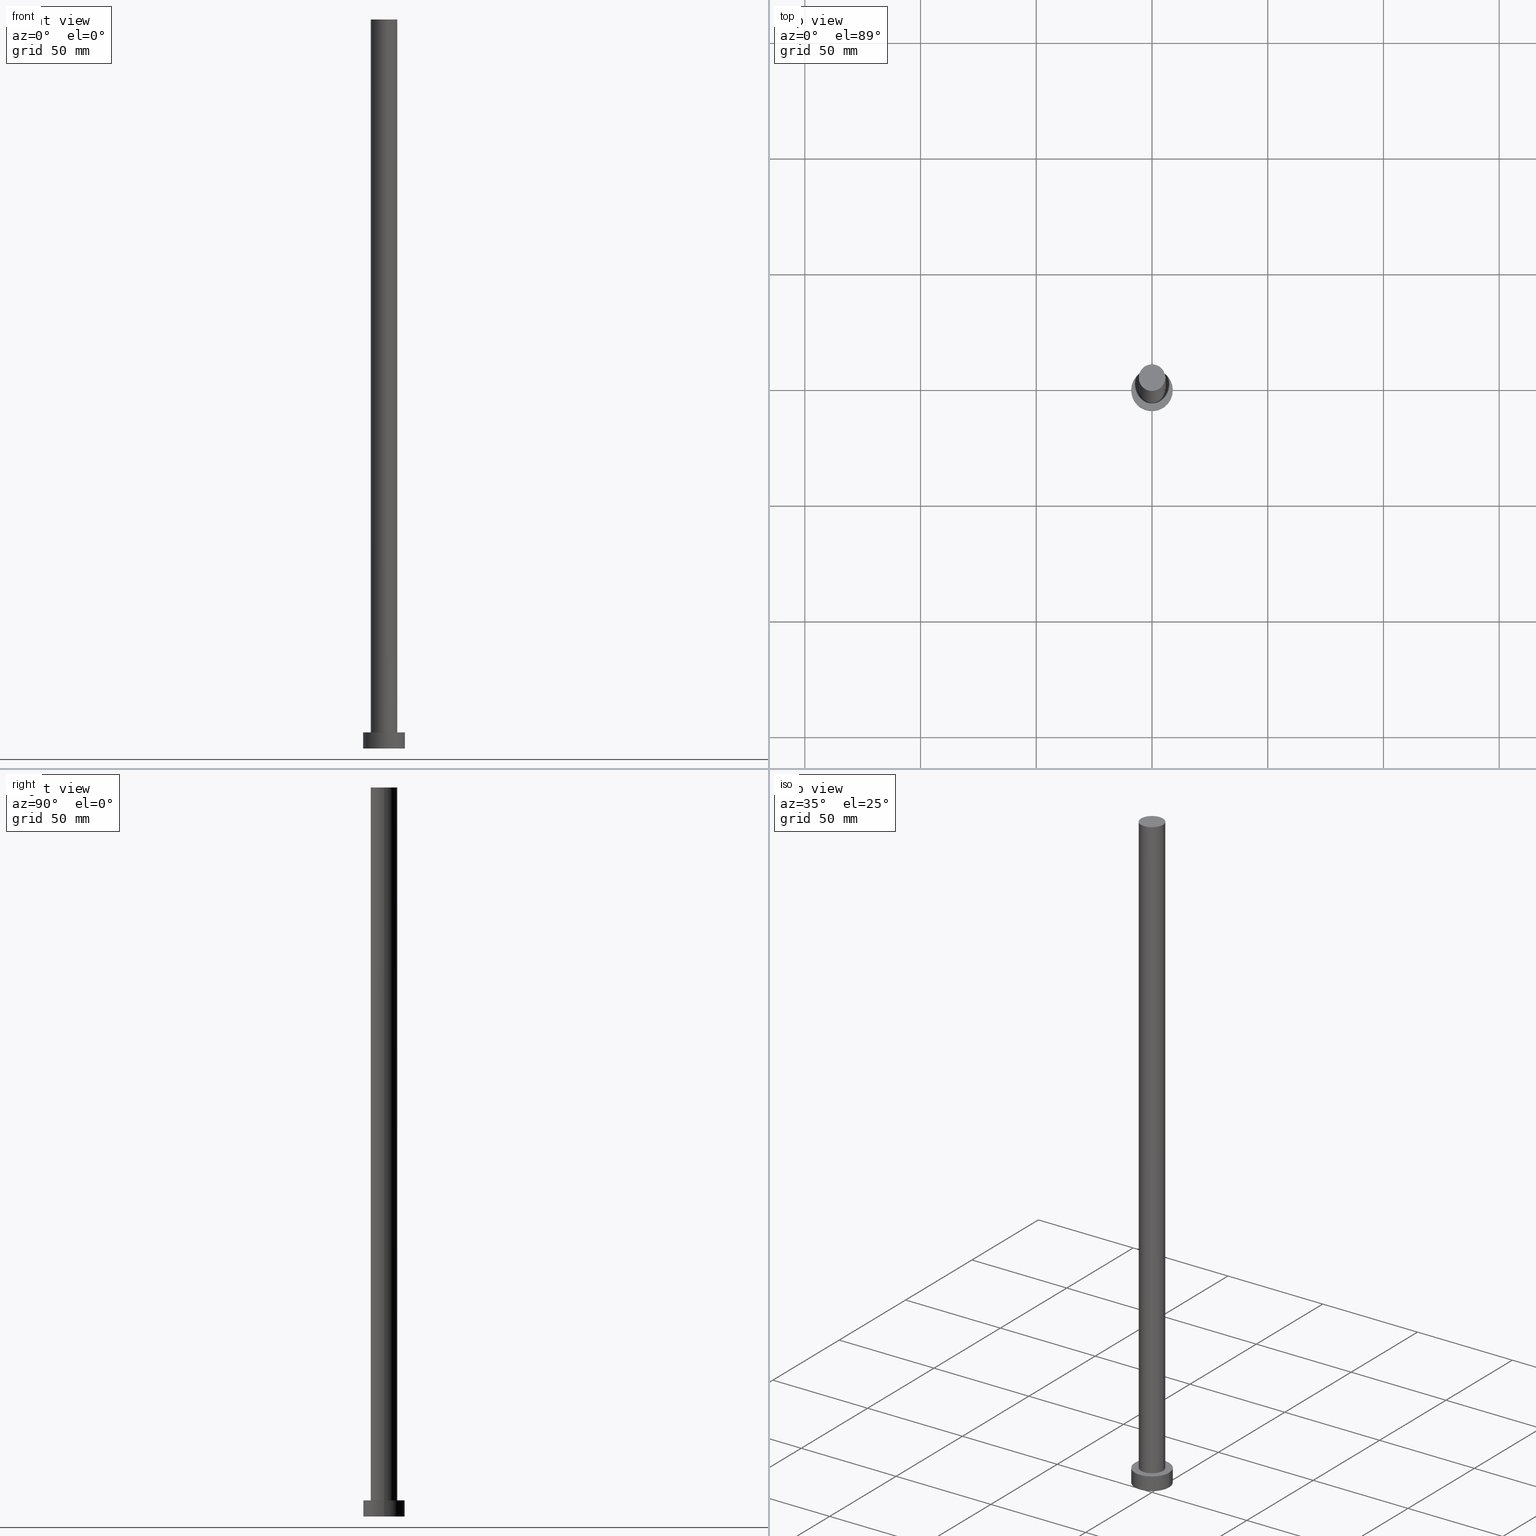
[diagram: canonical four-view strip — front | top / right | iso, engineering-drawing reading convention]
A machine part, canonical four-view strip (front | top / right | iso — engineering-drawing reading convention). The complete STEP part file that produces these views, byte-faithful:
ISO-10303-21;
HEADER;
FILE_DESCRIPTION (( 'STEP AP203' ),
    '1' );
FILE_NAME ('22f1.STEP',
    '2023-02-13T12:26:51',
    ( '' ),
    ( '' ),
    'SwSTEP 2.0',
    'SolidWorks 2019',
    '' );
FILE_SCHEMA (( 'CONFIG_CONTROL_DESIGN' ));
ENDSEC;

DATA;
#1 = ORIENTED_EDGE ( 'NONE', *, *, #95, .F. ) ;
#2 = AXIS2_PLACEMENT_3D ( 'NONE', #84, #99, #123 ) ;
#3 = FACE_OUTER_BOUND ( 'NONE', #69, .T. ) ;
#4 = ORIENTED_EDGE ( 'NONE', *, *, #157, .F. ) ;
#5 = CARTESIAN_POINT ( 'NONE',  ( 0.000000000000000000, 0.000000000000000000, 315.0000000000000000 ) ) ;
#6 = DIRECTION ( 'NONE',  ( -1.000000000000000000, 0.000000000000000000, 0.000000000000000000 ) ) ;
#7 = ORIENTED_EDGE ( 'NONE', *, *, #48, .F. ) ;
#8 = EDGE_CURVE ( 'NONE', #144, #79, #222, .T. ) ;
#9 = SECURITY_CLASSIFICATION ( '', '', #215 ) ;
#10 = ORIENTED_EDGE ( 'NONE', *, *, #224, .F. ) ;
#11 = EDGE_CURVE ( 'NONE', #85, #98, #223, .T. ) ;
#12 = ORIENTED_EDGE ( 'NONE', *, *, #103, .F. ) ;
#13 = PRODUCT ( '22f1', '22f1', '', ( #255 ) ) ;
#14 = CC_DESIGN_PERSON_AND_ORGANIZATION_ASSIGNMENT ( #90, #179, ( #76 ) ) ;
#15 = CYLINDRICAL_SURFACE ( 'NONE', #198, 5.750000000000000000 ) ;
#16 = PERSON_AND_ORGANIZATION ( #167, #55 ) ;
#17 = CARTESIAN_POINT ( 'NONE',  ( 0.000000000000000000, 0.000000000000000000, 7.000000000000000000 ) ) ;
#18 = FACE_BOUND ( 'NONE', #225, .T. ) ;
#19 = ORIENTED_EDGE ( 'NONE', *, *, #8, .F. ) ;
#20 = DIRECTION ( 'NONE',  ( -1.000000000000000000, 0.000000000000000000, 0.000000000000000000 ) ) ;
#21 = LOCAL_TIME ( 13, 26, 51.00000000000000000, #65 ) ;
#22 = DIRECTION ( 'NONE',  ( 0.000000000000000000, 0.000000000000000000, 1.000000000000000000 ) ) ;
#23 = CARTESIAN_POINT ( 'NONE',  ( 0.000000000000000000, 0.000000000000000000, 0.000000000000000000 ) ) ;
#24 = CC_DESIGN_PERSON_AND_ORGANIZATION_ASSIGNMENT ( #227, #211, ( #186 ) ) ;
#25 = CIRCLE ( 'NONE', #51, 5.750000000000000000 ) ;
#26 = PERSON_AND_ORGANIZATION ( #167, #55 ) ;
#27 = DIRECTION ( 'NONE',  ( 0.000000000000000000, 0.000000000000000000, 1.000000000000000000 ) ) ;
#28 = DATE_AND_TIME ( #251, #216 ) ;
#29 = AXIS2_PLACEMENT_3D ( 'NONE', #81, #185, #161 ) ;
#30 = APPLICATION_CONTEXT ( 'configuration controlled 3d designs of mechanical parts and assemblies' ) ;
#31 = DIRECTION ( 'NONE',  ( -0.000000000000000000, -0.000000000000000000, -1.000000000000000000 ) ) ;
#32 = CALENDAR_DATE ( 2023, 13, 2 ) ;
#33 = VECTOR ( 'NONE', #190, 1000.000000000000000 ) ;
#34 = APPLICATION_PROTOCOL_DEFINITION ( 'international standard', 'config_control_design', 1994, #70 ) ;
#35 = PLANE ( 'NONE',  #118 ) ;
#36 = PERSON_AND_ORGANIZATION_ROLE ( 'design_owner' ) ;
#37 = PRODUCT_RELATED_PRODUCT_CATEGORY ( 'detail', '', ( #13 ) ) ;
#38 = DIRECTION ( 'NONE',  ( 0.000000000000000000, 0.000000000000000000, 1.000000000000000000 ) ) ;
#39 = DIRECTION ( 'NONE',  ( 1.000000000000000000, 0.000000000000000000, 0.000000000000000000 ) ) ;
#40 = AXIS2_PLACEMENT_3D ( 'NONE', #46, #27, #128 ) ;
#41 = DATE_TIME_ROLE ( 'creation_date' ) ;
#42 = ADVANCED_FACE ( 'NONE', ( #18, #239 ), #35, .T. ) ;
#43 = CIRCLE ( 'NONE', #2, 9.000000000000000000 ) ;
#44 = PLANE ( 'NONE',  #60 ) ;
#45 = CARTESIAN_POINT ( 'NONE',  ( 0.000000000000000000, 0.000000000000000000, 0.000000000000000000 ) ) ;
#46 = CARTESIAN_POINT ( 'NONE',  ( 0.000000000000000000, 0.000000000000000000, 7.000000000000000000 ) ) ;
#47 = DATE_TIME_ROLE ( 'classification_date' ) ;
#48 = EDGE_CURVE ( 'NONE', #142, #217, #171, .T. ) ;
#49 = COORDINATED_UNIVERSAL_TIME_OFFSET ( 1, 0, .AHEAD. ) ;
#50 = ADVANCED_BREP_SHAPE_REPRESENTATION ( '22f1', ( #250, #194 ), #80 ) ;
#51 = AXIS2_PLACEMENT_3D ( 'NONE', #207, #38, #236 ) ;
#52 = ADVANCED_FACE ( 'NONE', ( #218 ), #15, .T. ) ;
#53 = PLANE ( 'NONE',  #176 ) ;
#54 = CARTESIAN_POINT ( 'NONE',  ( -5.750000000000000000, 0.000000000000000000, 315.0000000000000000 ) ) ;
#55 = ORGANIZATION ( 'NEUR�EN�', 'NEUR�EN�', '' ) ;
#56 = CC_DESIGN_DATE_AND_TIME_ASSIGNMENT ( #151, #41, ( #186 ) ) ;
#57 = EDGE_LOOP ( 'NONE', ( #10, #141, #184, #131 ) ) ;
#58 = CARTESIAN_POINT ( 'NONE',  ( 9.000000000000000000, 1.102182119232617714E-15, 0.000000000000000000 ) ) ;
#59 = CARTESIAN_POINT ( 'NONE',  ( 0.000000000000000000, 0.000000000000000000, 7.000000000000000000 ) ) ;
#60 = AXIS2_PLACEMENT_3D ( 'NONE', #45, #195, #233 ) ;
#61 = CARTESIAN_POINT ( 'NONE',  ( -9.000000000000000000, 0.000000000000000000, 7.000000000000000000 ) ) ;
#62 = AXIS2_PLACEMENT_3D ( 'NONE', #23, #187, #39 ) ;
#63 = EDGE_CURVE ( 'NONE', #217, #142, #43, .T. ) ;
#64 = LOCAL_TIME ( 13, 26, 51.00000000000000000, #49 ) ;
#65 = COORDINATED_UNIVERSAL_TIME_OFFSET ( 1, 0, .AHEAD. ) ;
#66 = FACE_OUTER_BOUND ( 'NONE', #228, .T. ) ;
#67 = APPROVAL_PERSON_ORGANIZATION ( #26, #253, #191 ) ;
#68 = DIRECTION ( 'NONE',  ( 1.000000000000000000, 0.000000000000000000, 0.000000000000000000 ) ) ;
#69 = EDGE_LOOP ( 'NONE', ( #241, #159, #234, #180 ) ) ;
#70 = APPLICATION_CONTEXT ( 'configuration controlled 3d designs of mechanical parts and assemblies' ) ;
#71 = CC_DESIGN_PERSON_AND_ORGANIZATION_ASSIGNMENT ( #16, #36, ( #13 ) ) ;
#72 = COORDINATED_UNIVERSAL_TIME_OFFSET ( 1, 0, .AHEAD. ) ;
#73 = CC_DESIGN_APPROVAL ( #253, ( #76 ) ) ;
#74 = APPROVAL_DATE_TIME ( #28, #197 ) ;
#75 = AXIS2_PLACEMENT_3D ( 'NONE', #210, #152, #68 ) ;
#76 = PRODUCT_DEFINITION_FORMATION_WITH_SPECIFIED_SOURCE ( 'LIBOVOLN�', '', #13, .NOT_KNOWN. ) ;
#77 = FACE_OUTER_BOUND ( 'NONE', #204, .T. ) ;
#78 = DESIGN_CONTEXT ( 'detailed design', #30, 'design' ) ;
#79 = VERTEX_POINT ( 'NONE', #168 ) ;
#80 =( GEOMETRIC_REPRESENTATION_CONTEXT ( 3 ) GLOBAL_UNCERTAINTY_ASSIGNED_CONTEXT ( ( #122 ) ) GLOBAL_UNIT_ASSIGNED_CONTEXT ( ( #156, #150, #242 ) ) REPRESENTATION_CONTEXT ( 'NONE', 'WORKASPACE' ) );
#81 = CARTESIAN_POINT ( 'NONE',  ( 0.000000000000000000, 0.000000000000000000, 7.000000000000000000 ) ) ;
#82 = ORIENTED_EDGE ( 'NONE', *, *, #247, .T. ) ;
#83 = ORIENTED_EDGE ( 'NONE', *, *, #63, .F. ) ;
#84 = CARTESIAN_POINT ( 'NONE',  ( 0.000000000000000000, 0.000000000000000000, 0.000000000000000000 ) ) ;
#85 = VERTEX_POINT ( 'NONE', #54 ) ;
#86 = LINE ( 'NONE', #243, #112 ) ;
#87 = PRODUCT_DEFINITION_SHAPE ( 'NONE', 'NONE',  #186 ) ;
#88 = CIRCLE ( 'NONE', #160, 9.000000000000000000 ) ;
#89 = AXIS2_PLACEMENT_3D ( 'NONE', #17, #165, #104 ) ;
#90 = PERSON_AND_ORGANIZATION ( #167, #55 ) ;
#91 = CARTESIAN_POINT ( 'NONE',  ( 0.000000000000000000, 0.000000000000000000, 7.000000000000000000 ) ) ;
#92 = PERSON_AND_ORGANIZATION ( #167, #55 ) ;
#93 = PERSON_AND_ORGANIZATION ( #167, #55 ) ;
#94 = VERTEX_POINT ( 'NONE', #178 ) ;
#95 = EDGE_CURVE ( 'NONE', #98, #79, #153, .T. ) ;
#96 = APPROVAL_STATUS ( 'not_yet_approved' ) ;
#97 = AXIS2_PLACEMENT_3D ( 'NONE', #106, #175, #109 ) ;
#98 = VERTEX_POINT ( 'NONE', #110 ) ;
#99 = DIRECTION ( 'NONE',  ( 0.000000000000000000, 0.000000000000000000, 1.000000000000000000 ) ) ;
#100 = DIRECTION ( 'NONE',  ( 0.000000000000000000, 0.000000000000000000, 1.000000000000000000 ) ) ;
#101 = FACE_OUTER_BOUND ( 'NONE', #166, .T. ) ;
#102 = EDGE_LOOP ( 'NONE', ( #19, #189, #200, #170 ) ) ;
#103 = EDGE_CURVE ( 'NONE', #79, #98, #193, .T. ) ;
#104 = DIRECTION ( 'NONE',  ( -1.000000000000000000, 0.000000000000000000, 0.000000000000000000 ) ) ;
#105 = APPROVAL_DATE_TIME ( #129, #181 ) ;
#106 = CARTESIAN_POINT ( 'NONE',  ( 0.000000000000000000, 0.000000000000000000, 315.0000000000000000 ) ) ;
#107 = CALENDAR_DATE ( 2023, 13, 2 ) ;
#108 = EDGE_CURVE ( 'NONE', #254, #217, #86, .T. ) ;
#109 = DIRECTION ( 'NONE',  ( 1.000000000000000000, 0.000000000000000000, 0.000000000000000000 ) ) ;
#110 = CARTESIAN_POINT ( 'NONE',  ( -5.750000000000000000, 0.000000000000000000, 7.000000000000000000 ) ) ;
#111 = PERSON_AND_ORGANIZATION ( #167, #55 ) ;
#112 = VECTOR ( 'NONE', #173, 1000.000000000000000 ) ;
#113 = CARTESIAN_POINT ( 'NONE',  ( 5.750000000000000000, 7.041719095097280880E-16, 315.0000000000000000 ) ) ;
#114 = SHAPE_DEFINITION_REPRESENTATION ( #87, #50 ) ;
#115 = EDGE_CURVE ( 'NONE', #85, #144, #252, .T. ) ;
#116 = PERSON_AND_ORGANIZATION_ROLE ( 'classification_officer' ) ;
#117 = ORIENTED_EDGE ( 'NONE', *, *, #224, .T. ) ;
#118 = AXIS2_PLACEMENT_3D ( 'NONE', #59, #148, #208 ) ;
#119 = CALENDAR_DATE ( 2023, 13, 2 ) ;
#120 = CC_DESIGN_SECURITY_CLASSIFICATION ( #9, ( #76 ) ) ;
#121 = CARTESIAN_POINT ( 'NONE',  ( 0.000000000000000000, 0.000000000000000000, 7.000000000000000000 ) ) ;
#122 = UNCERTAINTY_MEASURE_WITH_UNIT (LENGTH_MEASURE( 1.000000000000000082E-05 ), #156, 'distance_accuracy_value', 'NONE');
#123 = DIRECTION ( 'NONE',  ( 1.000000000000000000, 0.000000000000000000, 0.000000000000000000 ) ) ;
#124 = CYLINDRICAL_SURFACE ( 'NONE', #89, 9.000000000000000000 ) ;
#125 = DIRECTION ( 'NONE',  ( -0.000000000000000000, -0.000000000000000000, -1.000000000000000000 ) ) ;
#126 = LOCAL_TIME ( 13, 26, 51.00000000000000000, #213 ) ;
#127 = DIRECTION ( 'NONE',  ( 0.000000000000000000, 0.000000000000000000, 1.000000000000000000 ) ) ;
#128 = DIRECTION ( 'NONE',  ( 1.000000000000000000, 0.000000000000000000, 0.000000000000000000 ) ) ;
#129 = DATE_AND_TIME ( #130, #21 ) ;
#130 = CALENDAR_DATE ( 2023, 13, 2 ) ;
#131 = ORIENTED_EDGE ( 'NONE', *, *, #247, .F. ) ;
#132 = APPROVAL_PERSON_ORGANIZATION ( #111, #181, #174 ) ;
#133 = ADVANCED_FACE ( 'NONE', ( #134 ), #192, .T. ) ;
#134 = FACE_OUTER_BOUND ( 'NONE', #57, .T. ) ;
#135 = APPROVAL_ROLE ( '' ) ;
#136 = CARTESIAN_POINT ( 'NONE',  ( 9.000000000000000000, 1.102182119232617714E-15, 7.000000000000000000 ) ) ;
#137 = AXIS2_PLACEMENT_3D ( 'NONE', #91, #154, #230 ) ;
#138 = CC_DESIGN_APPROVAL ( #181, ( #186 ) ) ;
#139 = ORIENTED_EDGE ( 'NONE', *, *, #157, .T. ) ;
#140 = CC_DESIGN_DATE_AND_TIME_ASSIGNMENT ( #249, #47, ( #9 ) ) ;
#141 = ORIENTED_EDGE ( 'NONE', *, *, #108, .T. ) ;
#142 = VERTEX_POINT ( 'NONE', #245 ) ;
#143 = DIRECTION ( 'NONE',  ( 1.000000000000000000, 0.000000000000000000, 0.000000000000000000 ) ) ;
#144 = VERTEX_POINT ( 'NONE', #113 ) ;
#145 = ADVANCED_FACE ( 'NONE', ( #66 ), #44, .F. ) ;
#146 = CARTESIAN_POINT ( 'NONE',  ( 0.000000000000000000, 0.000000000000000000, 315.0000000000000000 ) ) ;
#147 = ORIENTED_EDGE ( 'NONE', *, *, #203, .T. ) ;
#148 = DIRECTION ( 'NONE',  ( 0.000000000000000000, 0.000000000000000000, 1.000000000000000000 ) ) ;
#149 = CC_DESIGN_APPROVAL ( #197, ( #9 ) ) ;
#150 =( NAMED_UNIT ( * ) PLANE_ANGLE_UNIT ( ) SI_UNIT ( $, .RADIAN. ) );
#151 = DATE_AND_TIME ( #107, #126 ) ;
#152 = DIRECTION ( 'NONE',  ( 0.000000000000000000, 0.000000000000000000, 1.000000000000000000 ) ) ;
#153 = CIRCLE ( 'NONE', #40, 5.750000000000000000 ) ;
#154 = DIRECTION ( 'NONE',  ( -0.000000000000000000, -0.000000000000000000, -1.000000000000000000 ) ) ;
#155 = ORIENTED_EDGE ( 'NONE', *, *, #108, .F. ) ;
#156 =( LENGTH_UNIT ( ) NAMED_UNIT ( * ) SI_UNIT ( .MILLI., .METRE. ) );
#157 = EDGE_CURVE ( 'NONE', #94, #254, #88, .T. ) ;
#158 = DATE_AND_TIME ( #119, #64 ) ;
#159 = ORIENTED_EDGE ( 'NONE', *, *, #8, .T. ) ;
#160 = AXIS2_PLACEMENT_3D ( 'NONE', #121, #127, #162 ) ;
#161 = DIRECTION ( 'NONE',  ( 1.000000000000000000, 0.000000000000000000, 0.000000000000000000 ) ) ;
#162 = DIRECTION ( 'NONE',  ( 1.000000000000000000, 0.000000000000000000, 0.000000000000000000 ) ) ;
#163 = DIRECTION ( 'NONE',  ( -0.000000000000000000, -0.000000000000000000, -1.000000000000000000 ) ) ;
#164 = CLOSED_SHELL ( 'NONE', ( #229, #133, #221, #42, #145, #52, #214 ) ) ;
#165 = DIRECTION ( 'NONE',  ( -0.000000000000000000, -0.000000000000000000, -1.000000000000000000 ) ) ;
#166 = EDGE_LOOP ( 'NONE', ( #155, #4, #82, #183 ) ) ;
#167 = PERSON ( 'NEUR�EN�', 'NEUR�EN�', 'NEUR�EN�', ('NEUR�EN�'), ('NEUR�EN�'), ('NEUR�EN�') ) ;
#168 = CARTESIAN_POINT ( 'NONE',  ( 5.750000000000000000, 7.041719095097280880E-16, 7.000000000000000000 ) ) ;
#169 = APPROVAL_STATUS ( 'not_yet_approved' ) ;
#170 = ORIENTED_EDGE ( 'NONE', *, *, #95, .T. ) ;
#171 = CIRCLE ( 'NONE', #62, 9.000000000000000000 ) ;
#172 = AXIS2_PLACEMENT_3D ( 'NONE', #146, #125, #20 ) ;
#173 = DIRECTION ( 'NONE',  ( -0.000000000000000000, -0.000000000000000000, -1.000000000000000000 ) ) ;
#174 = APPROVAL_ROLE ( '' ) ;
#175 = DIRECTION ( 'NONE',  ( 0.000000000000000000, 0.000000000000000000, 1.000000000000000000 ) ) ;
#176 = AXIS2_PLACEMENT_3D ( 'NONE', #5, #22, #202 ) ;
#177 = CIRCLE ( 'NONE', #29, 9.000000000000000000 ) ;
#178 = CARTESIAN_POINT ( 'NONE',  ( -9.000000000000000000, 0.000000000000000000, 7.000000000000000000 ) ) ;
#179 = PERSON_AND_ORGANIZATION_ROLE ( 'design_supplier' ) ;
#180 = ORIENTED_EDGE ( 'NONE', *, *, #11, .F. ) ;
#181 = APPROVAL ( #169, 'NEUR�EN�' ) ;
#182 = PERSON_AND_ORGANIZATION_ROLE ( 'creator' ) ;
#183 = ORIENTED_EDGE ( 'NONE', *, *, #48, .T. ) ;
#184 = ORIENTED_EDGE ( 'NONE', *, *, #63, .T. ) ;
#185 = DIRECTION ( 'NONE',  ( 0.000000000000000000, 0.000000000000000000, 1.000000000000000000 ) ) ;
#186 = PRODUCT_DEFINITION ( 'NEZN�M�', '', #76, #78 ) ;
#187 = DIRECTION ( 'NONE',  ( 0.000000000000000000, 0.000000000000000000, 1.000000000000000000 ) ) ;
#188 = LINE ( 'NONE', #61, #248 ) ;
#189 = ORIENTED_EDGE ( 'NONE', *, *, #115, .F. ) ;
#190 = DIRECTION ( 'NONE',  ( -0.000000000000000000, -0.000000000000000000, -1.000000000000000000 ) ) ;
#191 = APPROVAL_ROLE ( '' ) ;
#192 = CYLINDRICAL_SURFACE ( 'NONE', #137, 9.000000000000000000 ) ;
#193 = CIRCLE ( 'NONE', #75, 5.750000000000000000 ) ;
#194 = AXIS2_PLACEMENT_3D ( 'NONE', #237, #100, #143 ) ;
#195 = DIRECTION ( 'NONE',  ( 0.000000000000000000, 0.000000000000000000, 1.000000000000000000 ) ) ;
#196 = EDGE_LOOP ( 'NONE', ( #139, #117 ) ) ;
#197 = APPROVAL ( #96, 'NEUR�EN�' ) ;
#198 = AXIS2_PLACEMENT_3D ( 'NONE', #220, #206, #6 ) ;
#199 = APPROVAL_DATE_TIME ( #158, #253 ) ;
#200 = ORIENTED_EDGE ( 'NONE', *, *, #11, .T. ) ;
#201 = CARTESIAN_POINT ( 'NONE',  ( -5.750000000000000000, 0.000000000000000000, 315.0000000000000000 ) ) ;
#202 = DIRECTION ( 'NONE',  ( 1.000000000000000000, 0.000000000000000000, -0.000000000000000000 ) ) ;
#203 = EDGE_CURVE ( 'NONE', #144, #85, #25, .T. ) ;
#204 = EDGE_LOOP ( 'NONE', ( #235, #147 ) ) ;
#205 = APPLICATION_PROTOCOL_DEFINITION ( 'international standard', 'config_control_design', 1994, #30 ) ;
#206 = DIRECTION ( 'NONE',  ( -0.000000000000000000, -0.000000000000000000, -1.000000000000000000 ) ) ;
#207 = CARTESIAN_POINT ( 'NONE',  ( 0.000000000000000000, 0.000000000000000000, 315.0000000000000000 ) ) ;
#208 = DIRECTION ( 'NONE',  ( 1.000000000000000000, 0.000000000000000000, -0.000000000000000000 ) ) ;
#209 = CC_DESIGN_PERSON_AND_ORGANIZATION_ASSIGNMENT ( #93, #182, ( #76 ) ) ;
#210 = CARTESIAN_POINT ( 'NONE',  ( 0.000000000000000000, 0.000000000000000000, 7.000000000000000000 ) ) ;
#211 = PERSON_AND_ORGANIZATION_ROLE ( 'creator' ) ;
#212 = VECTOR ( 'NONE', #163, 1000.000000000000000 ) ;
#213 = COORDINATED_UNIVERSAL_TIME_OFFSET ( 1, 0, .AHEAD. ) ;
#214 = ADVANCED_FACE ( 'NONE', ( #77 ), #53, .T. ) ;
#215 = SECURITY_CLASSIFICATION_LEVEL ( 'unclassified' ) ;
#216 = LOCAL_TIME ( 13, 26, 51.00000000000000000, #72 ) ;
#217 = VERTEX_POINT ( 'NONE', #58 ) ;
#218 = FACE_OUTER_BOUND ( 'NONE', #102, .T. ) ;
#219 = APPROVAL_PERSON_ORGANIZATION ( #92, #197, #135 ) ;
#220 = CARTESIAN_POINT ( 'NONE',  ( 0.000000000000000000, 0.000000000000000000, 315.0000000000000000 ) ) ;
#221 = ADVANCED_FACE ( 'NONE', ( #101 ), #124, .T. ) ;
#222 = LINE ( 'NONE', #240, #212 ) ;
#223 = LINE ( 'NONE', #201, #33 ) ;
#224 = EDGE_CURVE ( 'NONE', #254, #94, #177, .T. ) ;
#225 = EDGE_LOOP ( 'NONE', ( #1, #12 ) ) ;
#226 = LOCAL_TIME ( 13, 26, 51.00000000000000000, #231 ) ;
#227 = PERSON_AND_ORGANIZATION ( #167, #55 ) ;
#228 = EDGE_LOOP ( 'NONE', ( #7, #83 ) ) ;
#229 = ADVANCED_FACE ( 'NONE', ( #3 ), #238, .T. ) ;
#230 = DIRECTION ( 'NONE',  ( -1.000000000000000000, 0.000000000000000000, 0.000000000000000000 ) ) ;
#231 = COORDINATED_UNIVERSAL_TIME_OFFSET ( 1, 0, .AHEAD. ) ;
#232 = CC_DESIGN_PERSON_AND_ORGANIZATION_ASSIGNMENT ( #246, #116, ( #9 ) ) ;
#233 = DIRECTION ( 'NONE',  ( 1.000000000000000000, 0.000000000000000000, -0.000000000000000000 ) ) ;
#234 = ORIENTED_EDGE ( 'NONE', *, *, #103, .T. ) ;
#235 = ORIENTED_EDGE ( 'NONE', *, *, #115, .T. ) ;
#236 = DIRECTION ( 'NONE',  ( 1.000000000000000000, 0.000000000000000000, 0.000000000000000000 ) ) ;
#237 = CARTESIAN_POINT ( 'NONE',  ( 0.000000000000000000, 0.000000000000000000, 0.000000000000000000 ) ) ;
#238 = CYLINDRICAL_SURFACE ( 'NONE', #172, 5.750000000000000000 ) ;
#239 = FACE_OUTER_BOUND ( 'NONE', #196, .T. ) ;
#240 = CARTESIAN_POINT ( 'NONE',  ( 5.750000000000000000, 7.041719095097280880E-16, 315.0000000000000000 ) ) ;
#241 = ORIENTED_EDGE ( 'NONE', *, *, #203, .F. ) ;
#242 =( NAMED_UNIT ( * ) SI_UNIT ( $, .STERADIAN. ) SOLID_ANGLE_UNIT ( ) );
#243 = CARTESIAN_POINT ( 'NONE',  ( 9.000000000000000000, 1.102182119232617714E-15, 7.000000000000000000 ) ) ;
#244 = APPROVAL_STATUS ( 'not_yet_approved' ) ;
#245 = CARTESIAN_POINT ( 'NONE',  ( -9.000000000000000000, 0.000000000000000000, 0.000000000000000000 ) ) ;
#246 = PERSON_AND_ORGANIZATION ( #167, #55 ) ;
#247 = EDGE_CURVE ( 'NONE', #94, #142, #188, .T. ) ;
#248 = VECTOR ( 'NONE', #31, 1000.000000000000000 ) ;
#249 = DATE_AND_TIME ( #32, #226 ) ;
#250 = MANIFOLD_SOLID_BREP ( 'P�idat vysunut�m3', #164 ) ;
#251 = CALENDAR_DATE ( 2023, 13, 2 ) ;
#252 = CIRCLE ( 'NONE', #97, 5.750000000000000000 ) ;
#253 = APPROVAL ( #244, 'NEUR�EN�' ) ;
#254 = VERTEX_POINT ( 'NONE', #136 ) ;
#255 = MECHANICAL_CONTEXT ( 'NONE', #70, 'mechanical' ) ;
ENDSEC;
END-ISO-10303-21;
